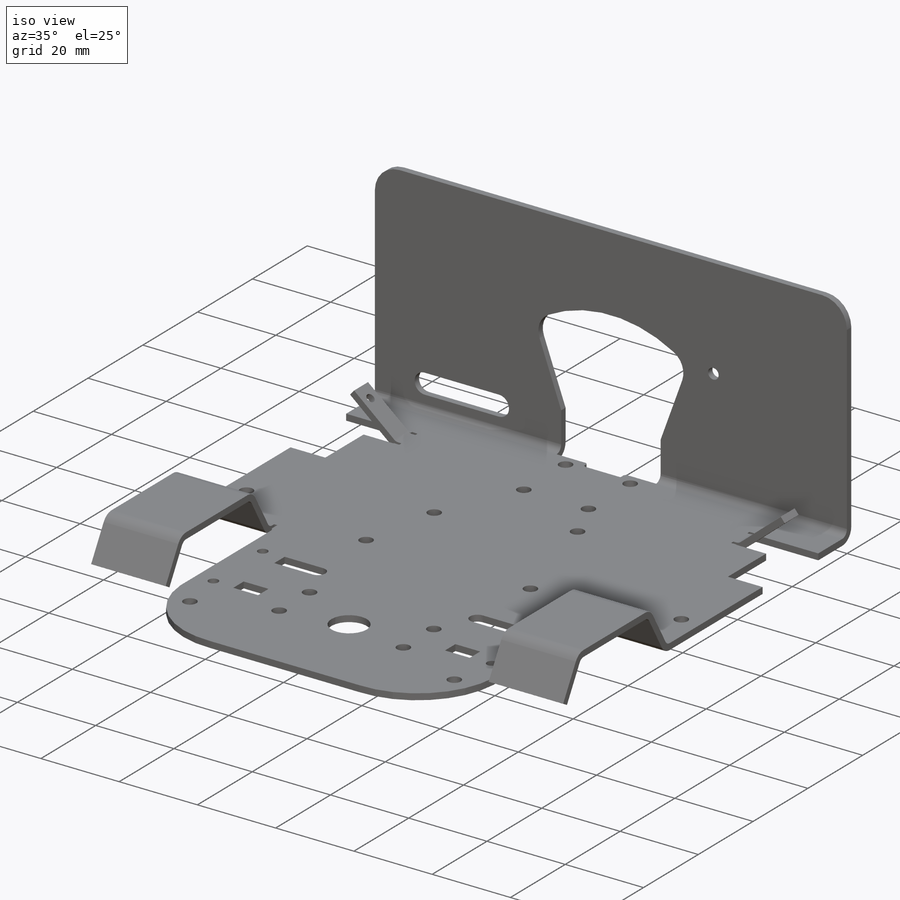
[diagram: iso view]
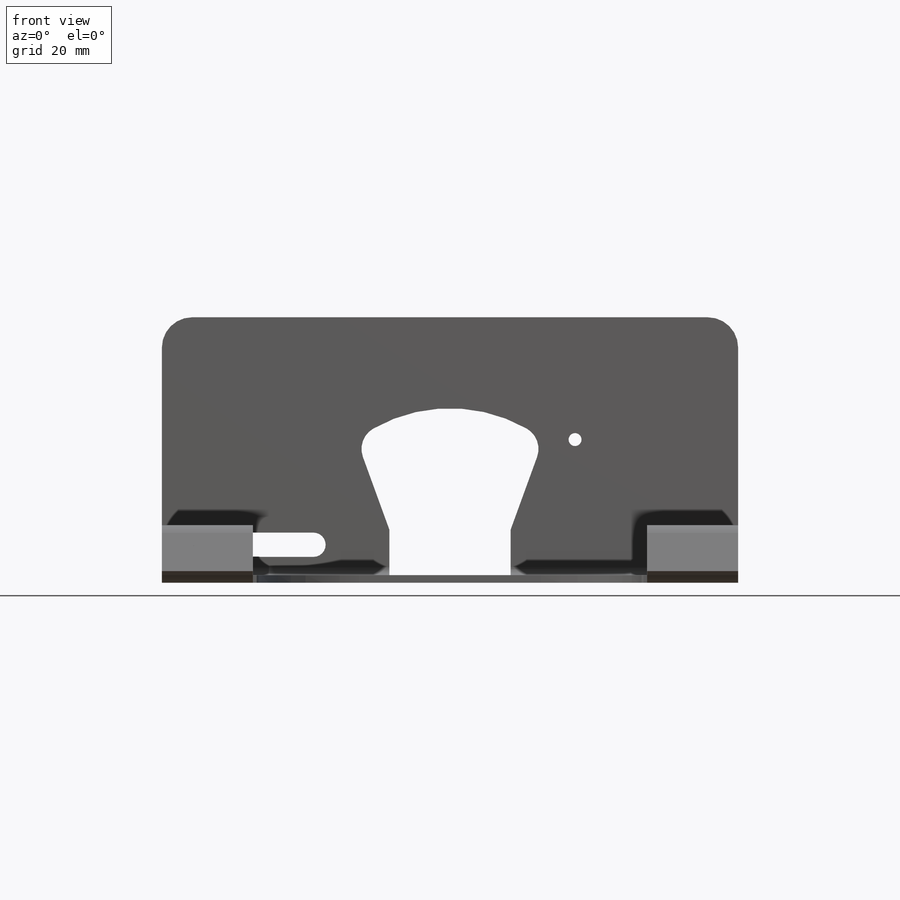
[diagram: front view]
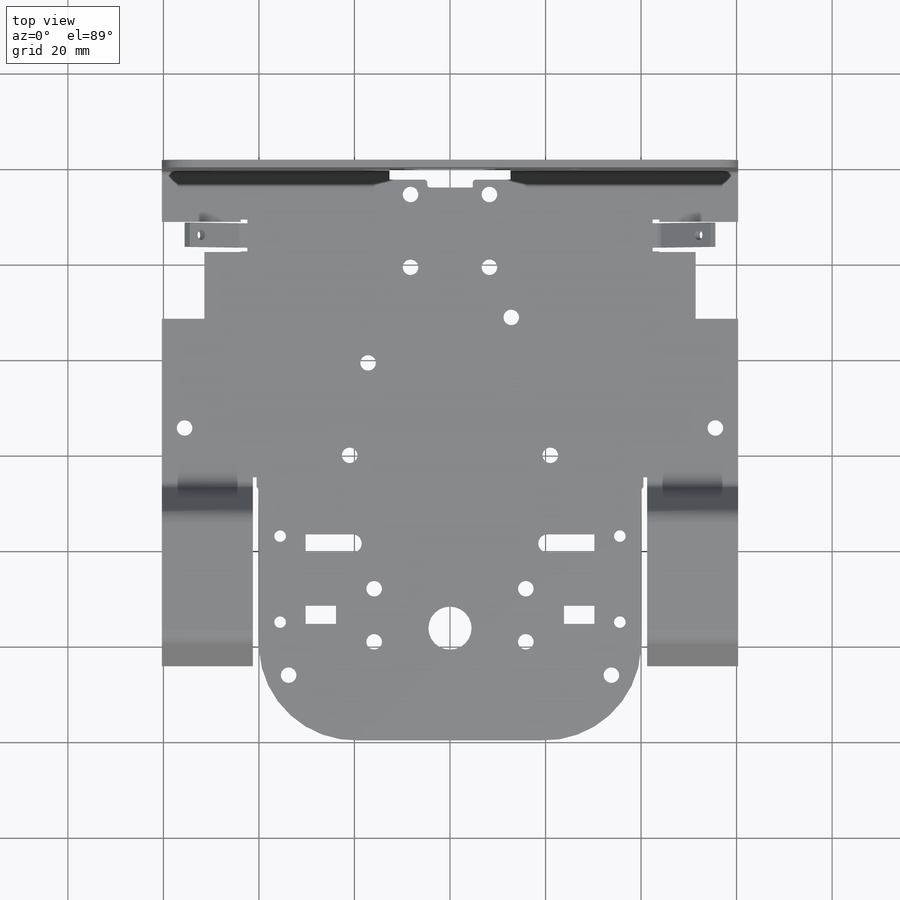
[diagram: top view]
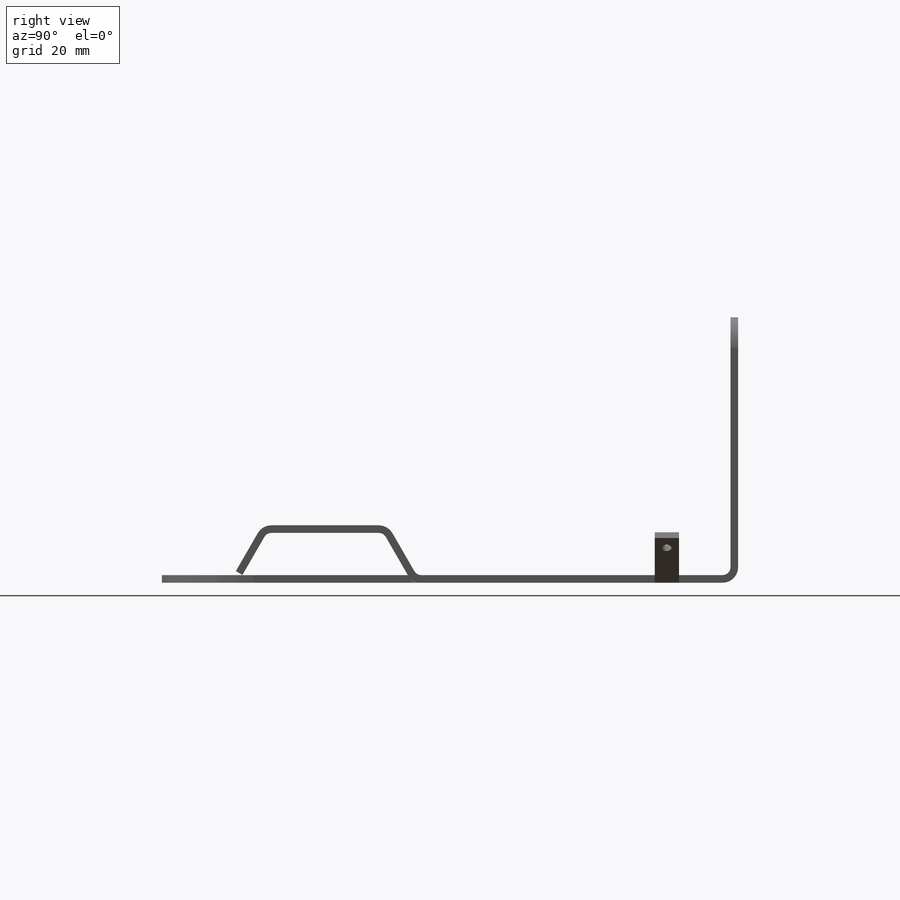
[diagram: right view]
SOLIDWORKS PART (.sldprt)
format: sldprt  version: not decoded by parser v0  size: 1,502,208 bytes
history: native  units: mm
features: sketch x39, cut_extrude x12, hole x7, fillet x3, extrude x2, mirror x2, material x1, sheet_metal_op x1 + 9 further entries (+16 scaffold rows collapsed; 1 parser-record rows omitted)
feature tree (93):
  scaffold x16  (default folders/planes/origin — collapsed)
  material  "5052-H32"
  sketch  "Sketch2"  dims[c1.D1=~134.766581mm c2.D1=120.65mm c2.D2=101.6mm c2.D3=20.32mm c2.D4=34.29mm c3.D2=101.6mm]
  extrude  "Extrude1"  Depth=1.6002mm Thickness=1.6002mm
  sheet_metal_op  "Sheet-Metal1"
  hole  "#2 Clearance Hole1"  Diameter=2.4384mm Depth=1.6002mm
  sketch  "3DSketch1"  dims[D1=18.0mm D2=5.715mm D3=4.445mm D4=4.445mm]
  sketch  "Sketch3"  dims[hole-wizard template sketch: 60 standard entries collapsed; hole parameters kept: c18.Thru Hole Depth=1.6002mm]
  sketch  "Sketch7"  dims[c1.D3=2.4384mm c1.D5=3.81mm c1.D6=3.81mm c1.D1=6.35mm c1.D2=3.81mm c2.D3=8.509mm c2.D4=1.524mm c2.D6=15.24mm c2.D5=9.8425mm]
  cut_extrude  "Extrude2"  [1 undecoded]
  fillet  "Fillet1"  Radius=1.27mm
  sketch  "Sketch8"  dims[D1=16.51mm D2=20.32mm D3=22.225mm D4=6.35mm D5=8.89mm]
  cut_extrude  "Cut-Extrude2"  [1 undecoded]
  sketch  "Sharp-Sketch1"  dims[D1=0.0mm]
  sketch  "Flat-Sketch1"  dims[D1=0.0mm]
  sketch  "Sketch17"  dims[c1.D1=57.15mm c1.D2=~60.533135mm c2.D2=70.0deg c2.D1=53.975mm c3.D2=14.478mm c3.D3=120.65mm c4.D3=90.0deg c4.D1=1.651mm c4.D4=90.0deg c4.D5=1.0 c4.D8=0.8255mm c4.D9=0.8255mm c5.D1=1.651mm c5.D2=500.0mm c5.D3=0.0mm c5.D6=10.0mm c5.D7=53.975mm]
  fillet  "Fillet2"  Radius=6.35mm
  sketch  "Sketch23"
  sketch  "Sketch24"  dims[c1.D1=1.651mm c1.D4=60.0deg c1.D5=2.0 c1.D8=0.8255mm c1.D9=0.8255mm c2.D1=1.651mm c2.D4=60.0deg c2.D5=3.0 c2.D8=0.8255mm c2.D9=0.8255mm c3.D1=1.651mm c3.D2=500.0mm c3.D3=0.0mm c3.D6=10.0mm c3.D7=10.16mm c3.D8=1.0mm]
  sketch  "Sketch29"
  sketch  "Sketch30"  dims[c1.D1=1.651mm c1.D4=60.0deg c1.D5=4.0 c1.D8=0.8255mm c1.D9=0.8255mm c2.D1=1.651mm c2.D4=60.0deg c2.D5=5.0 c2.D8=0.8255mm c2.D9=0.8255mm c3.D1=1.651mm c3.D2=500.0mm c3.D3=0.0mm c3.D6=10.0mm c3.D7=23.495mm c3.D8=1.0mm]
  sketch  "Sketch35"
  sketch  "Sketch36"  dims[c1.D1=1.651mm c1.D4=60.0deg c1.D5=6.0 c1.D8=0.8255mm c1.D9=0.8255mm c2.D1=1.651mm c2.D4=60.0deg c2.D5=7.0 c2.D8=0.8255mm c2.D9=0.8255mm c3.D1=1.651mm c3.D2=500.0mm c3.D3=0.0mm c3.D6=10.0mm c3.D7=10.16mm c3.D8=1.0mm]
  hole  "#4 Clearance Hole2"  Diameter=3.2639mm Depth=2.286mm
  sketch  "3DSketch2"  dims[c1.D1=~19.75697mm c1.D2=8.255mm c2.D2=~13.753635mm c2.D5=8.255mm c2.D3=~9.958502mm c2.D1=3.175mm c2.D4=~16.636277mm c3.D2=12.7mm c3.D1=~19.324548mm c4.D2=~19.324548mm c4.D1=8.255mm c5.D2=8.255mm c5.D3=15.24mm c5.D4=~14.193766mm c5.D5=3.81mm c6.D4=6.35mm]
  sketch  "Sketch4"  dims[hole-wizard template sketch: 47 standard entries collapsed; hole parameters kept: c15.Hole Depth=2.286mm c15.D3=~14.816244mm c15.Drill Angle=118.0deg]
  sketch  "Sketch37"  dims[c1.D5=2.54mm c1.D7=~22.40672mm c1.D1=25.4mm c1.D2=~7.249916mm c2.D2=60.0deg c2.D3=25.4mm c2.D4=12.7mm c2.D6=5.08mm c3.D2=4.064mm c3.D3=~16.864401mm c4.D3=75.0deg c4.D4=~16.70647mm c5.D4=75.0deg c5.D5=25.4mm c5.D3=4.064mm c5.D1=9.525mm c6.D3=25.4mm c6.D4=~18.356754mm c7.D4=70.0deg c7.D6=6.35mm c7.D1=9.525mm]
  cut_extrude  "Extrude3"  Depth=1.651mm
  sketch  "Sketch66"  dims[c1.D1=5.08mm c2.D1=1.651mm c2.D2=500.0mm c2.D3=0.0mm c2.D6=10.0mm c2.D7=13.97mm]
  sketch  "Sketch47"  dims[D1=2.0574mm D2=10.16mm D3=~14.967855mm]
  cut_extrude  "Extrude4"  [1 undecoded]
  mirror  "Mirror1"
  sketch  "Sketch55"  dims[c1.D1=50.8mm c1.D3=20.32mm c2.D1=19.05mm c2.D2=38.1mm]
  extrude  "Extrude7"  [1 undecoded]
  sketch  "Sketch56"  dims[D2=~2.70764mm D3=8.89mm D1=4.7625mm]
  cut_extrude  "Cut-Extrude3"  [1 undecoded]
  sketch  "Sketch57"  dims[D1=2.54mm]
  cut_extrude  "Cut-Extrude4"  [1 undecoded]
  hole  "#4 Clearance Hole3"  Diameter=3.2639mm Depth=6.35mm
  sketch  "3DSketch4"
  sketch  "Sketch59"  dims[hole-wizard template sketch: 47 standard entries collapsed; hole parameters kept: c15.Hole Depth=6.35mm c15.D3=~14.816244mm c15.Drill Angle=118.0deg]
  hole  "#4 Clearance Hole4"  Diameter=3.2639mm Depth=6.35mm
  sketch  "3DSketch5"  dims[c1.D1=~12.770692mm c1.D2=12.7mm c2.D2=0.0mm c2.D1=4.7625mm c3.D2=65.405mm c3.D3=4.7625mm]
  sketch  "Sketch61"  dims[hole-wizard template sketch: 47 standard entries collapsed; hole parameters kept: c15.Hole Depth=6.35mm c15.D3=~14.816244mm c15.Drill Angle=118.0deg]
  hole  "#4 Clearance Hole5"  Diameter=3.2639mm Depth=6.35mm
  sketch  "3DSketch6"  dims[D1=24.13mm D2=31.75mm D3=11.1125mm D4=20.6375mm]
  sketch  "Sketch62"  dims[hole-wizard template sketch: 47 standard entries collapsed; hole parameters kept: c15.Hole Depth=6.35mm c15.D3=~14.816244mm c15.Drill Angle=118.0deg]
  sketch  "Sketch63"  dims[c1.D1=~3.35115mm c1.D2=~2.624362mm c1.D4=1.27mm c2.D1=19.05mm c2.D2=19.05mm c2.D3=41.275mm]
  cut_extrude  "Extrude8"  [1 undecoded]
  hole  "#2 Clearance Hole3"  Diameter=2.4384mm Depth=1.651mm
  sketch  "3DSketch7"
  sketch  "Sketch64"  dims[hole-wizard template sketch: 60 standard entries collapsed; hole parameters kept: c18.Thru Hole Depth=1.651mm]
  sketch  "Sketch67"  dims[D1=1.651mm D2=9.525mm]
  cut_extrude  "Cut-Extrude5"  [1 undecoded]
  fillet  "Fillet3"  Radius=0.635mm
  sketch  "Sketch68"  dims[D1=9.0424mm]
  cut_extrude  "Cut-Extrude6"  [1 undecoded]
  sketch  "Sketch69"
  mirror  "Block2"
  cut_extrude  "Cut-Extrude7"  [1 undecoded]
  hole  "#4 Clearance Hole7"  Diameter=3.2639mm Depth=1.6002mm
  sketch  "Sketch71"
  sketch  "Sketch70"  dims[hole-wizard template sketch: 60 standard entries collapsed; hole parameters kept: c18.Thru Hole Depth=1.6002mm]
  sketch  "Sketch72"  dims[c1.D3=~2.70764mm c1.D5=~2.70764mm c1.D1=31.75mm c1.D2=25.4mm c1.D4=~42.665981mm c2.D2=19.05mm c2.D3=~28.645366mm c2.D1=31.75mm c3.D2=19.05mm c3.D3=8.001mm c3.D4=31.75mm c4.D3=8.001mm c4.D4=47.625mm c5.D4=40.0deg]
  cut_extrude  "Cut-Extrude8"  [1 undecoded]
  "Flat-Pattern1"
  sketch  "Bend-Lines1"
  "Flatten-<EdgeBend2>1"
  "Flatten-<EdgeBend3>1"
  "Flatten-<EdgeBend4>1"
  "Flatten-<EdgeBend5>1"
  "Flatten-<EdgeBend6>1"
  "Flatten-<EdgeBend7>1"
  "Flatten-<EdgeBend8>1"
  "Flatten-<MirrorBend2>1"
  parser-record x1  (decoder bookkeeping rows leaked as tree rows — omitted from the tree; the rows remain in map.json)
  sketch  "Sketch48"  dims[D1=1.27mm D2=2.032mm]
  cut_extrude  "Extrude5"  [1 undecoded]
decode coverage: 43 of 66 modeling features carry decoded parameters; 9 rows unclassified (native names shown)
note: ~ marks probable driven/reference dimensions
note: 12 parameter values undecoded
summary: no parameter record found for 12 features; Diameter pulled from absorbed wizard sketch
note: suppression state not decoded; provenance and decode notes live in map.json
